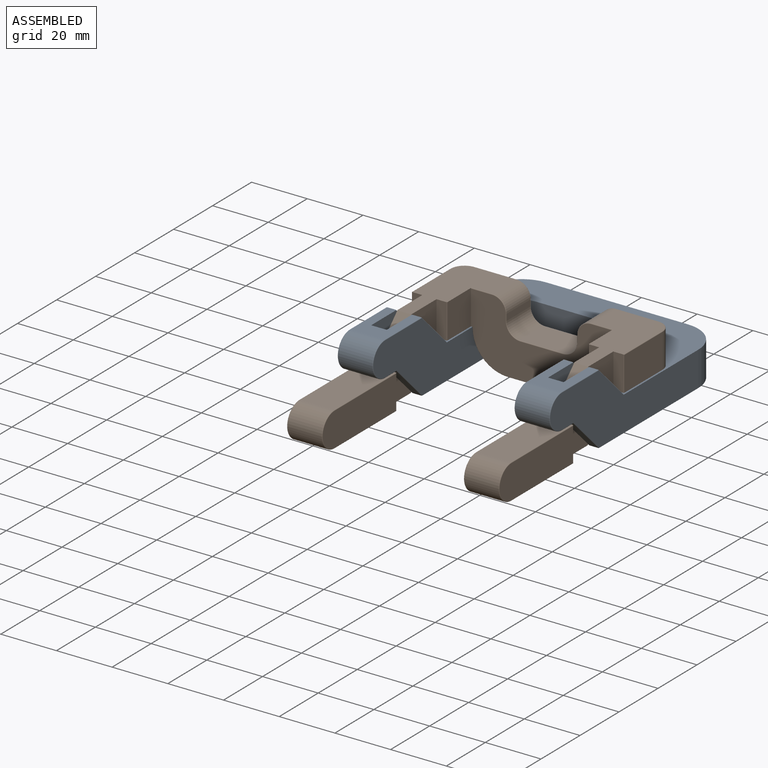
[diagram: assembled view]
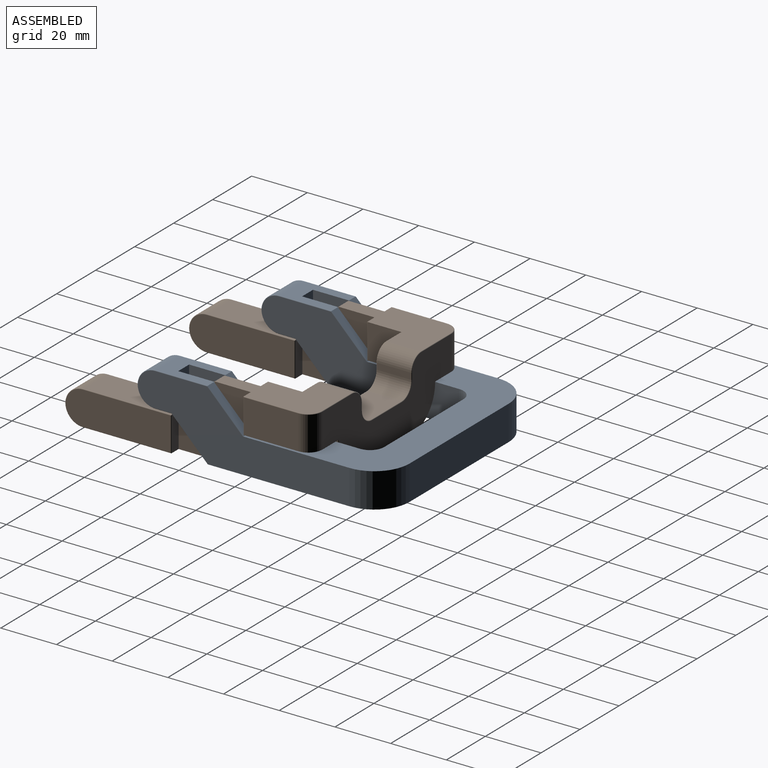
[diagram: assembled view, second angle]
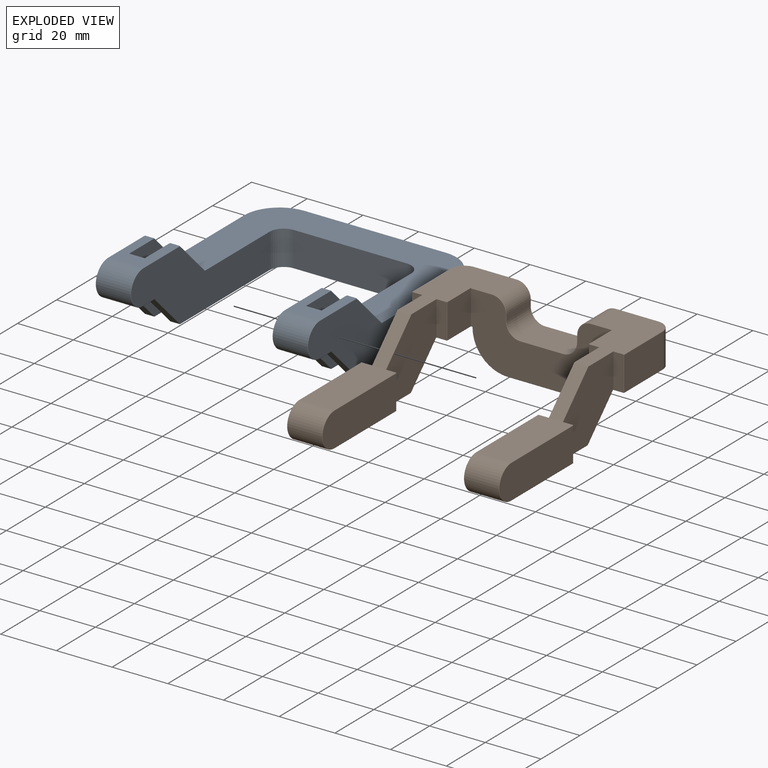
[diagram: exploded view]
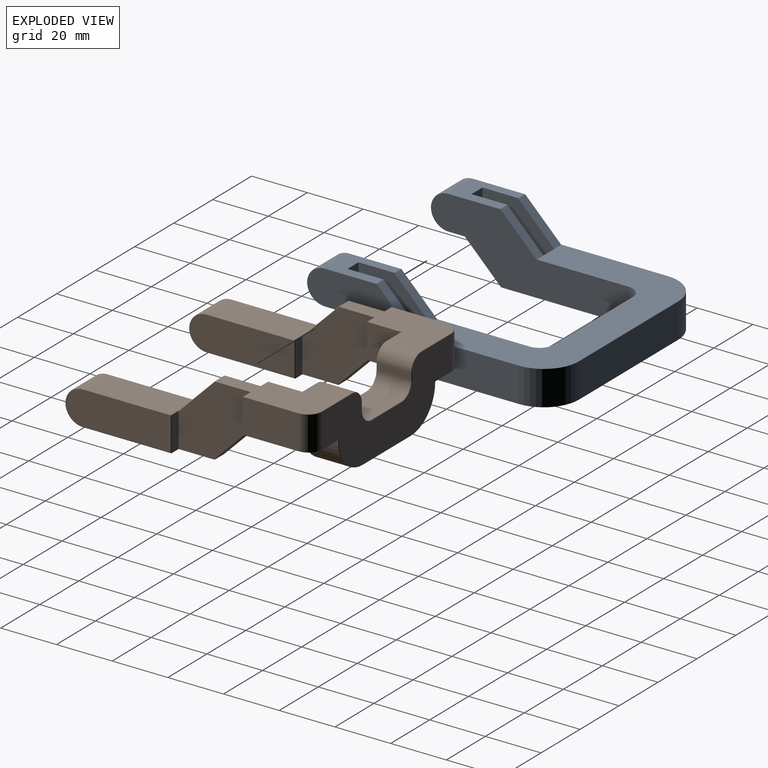
[diagram: exploded view, second angle]
ASSEMBLY  parts=2 mates=2
PART A: 68 faces, bbox 76.2x89.4x26.1 mm
  f0: plane 18.8x12.3mm, normal (0,0,1), area 158.8mm2, adj f3,f9,f24,f25,f26,f29,f53,f59
  f1: plane 12.95x12.95mm, normal (0,-0.71,-0.71), area 57.8mm2, adj f2,f10,f54,f60
  f2: plane 76.2x63.75mm, normal (0,0,-1), area 2061.5mm2, adj f1,f4,f7,f11,f12,f15,f16,f17
  f3: plane 12.95x12.95mm, normal (0,0.71,0.71), area 57.8mm2, adj f0,f8,f58,f62
  f4: plane 12.95x12.95mm, normal (0,-0.71,-0.71), area 57.8mm2, adj f2,f14,f42,f64
  f5: plane 12.95x12.95mm, normal (0,0.71,0.71), area 57.8mm2, adj f6,f8,f46,f66
  f6: plane 18.8x12.3mm, normal (0,0,1), area 158.8mm2, adj f5,f13,f20,f21,f22,f31,f41,f47
  f7: plane 12.95x12.95mm, normal (0,-0.71,-0.71), area 57.8mm2, adj f2,f10,f48,f61
  f8: plane 76.2x51.08mm, normal (0,0,1), area 1877.4mm2, adj f3,f5,f9,f12,f13,f15,f16,f17
  f9: plane 12.95x12.95mm, normal (0,0.71,0.71), area 57.8mm2, adj f0,f8,f52,f63
  f10: plane 12.3x5.84mm, normal (0,0,-1), area 71.9mm2, adj f1,f7,f24,f28,f49,f55
  f11: plane 12.95x12.95mm, normal (0,-0.71,-0.71), area 57.8mm2, adj f2,f14,f36,f65
  f12: plane 50.8x12.45mm, normal (0,1,0), area 632.3mm2, adj f2,f8,f34,f35
  f13: plane 12.95x12.95mm, normal (0,0.71,0.71), area 57.8mm2, adj f6,f8,f40,f67
  f14: plane 12.3x5.84mm, normal (0,0,-1), area 71.9mm2, adj f4,f11,f20,f30,f37,f43
  f15: plane 76x25.2mm, normal (1,0,0), area 1082.8mm2, adj f2,f8,f35,f36,f37,f38,f39,f40
  f16: plane 76x25.2mm, normal (-1,0,0), area 1082.8mm2, adj f2,f8,f34,f54,f55,f56,f57,f58
  f17: plane 70.92x25.2mm, normal (1,0,0), area 1019.5mm2, adj f2,f8,f32,f48,f49,f50,f51,f52
  f18: plane 70.92x25.2mm, normal (-1,0,0), area 1019.5mm2, adj f2,f8,f33,f42,f43,f44,f45,f46
  f19: plane 40.64x12.45mm, normal (0,-1,0), area 505.8mm2, adj f2,f8,f32,f33
  f20: plane 12.45x5.99mm, normal (0,1,0), area 69.6mm2, adj f6,f14,f21,f22,f64,f65
  f21: plane 25.91x25.4mm, normal (1,0,0), area 482.8mm2, adj f2,f6,f20,f23,f64,f66
  f22: plane 25.91x25.4mm, normal (-1,0,0), area 482.8mm2, adj f2,f6,f20,f23,f65,f67
  f23: plane 12.45x5.99mm, normal (0,-1,0), area 69.6mm2, adj f2,f8,f21,f22,f66,f67
  f24: plane 12.45x5.99mm, normal (0,1,0), area 69.6mm2, adj f0,f10,f25,f26,f60,f61
  f25: plane 25.91x25.4mm, normal (1,0,0), area 482.8mm2, adj f0,f2,f24,f27,f60,f62
  f26: plane 25.91x25.4mm, normal (-1,0,0), area 482.8mm2, adj f0,f2,f24,f27,f61,f63
  f27: plane 12.45x5.99mm, normal (0,-1,0), area 69.6mm2, adj f2,f8,f25,f26,f62,f63
  f28: cylinder r=6.35mm len=12.3mm, axis (-1,0,0), area 121.1mm2, adj f10,f29,f50,f56
  f29: cylinder r=6.35mm len=12.3mm, axis (1,0,0), area 121.1mm2, adj f0,f28,f51,f57
  f30: cylinder r=6.35mm len=12.3mm, axis (-1,0,0), area 121.1mm2, adj f14,f31,f38,f44
  f31: cylinder r=6.35mm len=12.3mm, axis (1,0,0), area 121.1mm2, adj f6,f30,f39,f45
  f32: cylinder r=5.08mm len=12.45mm, axis (0,0,-1), area 99.3mm2, adj f2,f8,f17,f19
  f33: cylinder r=5.08mm len=12.45mm, axis (0,0,1), area 99.3mm2, adj f2,f8,f18,f19
  f34: cylinder r=12.7mm len=12.7mm, axis (0,0,1), area 248.3mm2, adj f2,f8,f12,f16
  f35: cylinder r=12.7mm len=12.7mm, axis (0,0,-1), area 248.3mm2, adj f2,f8,f12,f15
  f36: cylinder r=0.2mm len=13.3mm, axis (0,-0.71,0.71), area 5.8mm2, adj f2,f11,f15,f37
  f37: cylinder r=0.2mm len=5.93mm, axis (0,-1,0), area 1.8mm2, adj f14,f15,f36,f38
  f38: torus R=6.15mm, axis (1,0,0), area 3.1mm2, adj f15,f30,f37,f39
  f39: torus R=6.15mm, axis (1,0,0), area 3.1mm2, adj f15,f31,f38,f41
  f40: cylinder r=0.2mm len=13.1mm, axis (0,0.71,-0.71), area 5.7mm2, adj f8,f13,f15,f41
  f41: cylinder r=0.2mm len=18.8mm, axis (0,1,0), area 5.9mm2, adj f6,f15,f39,f40
  f42: cylinder r=0.2mm len=13.3mm, axis (0,0.71,-0.71), area 5.8mm2, adj f2,f4,f18,f43
  f43: cylinder r=0.2mm len=5.93mm, axis (0,1,0), area 1.8mm2, adj f14,f18,f42,f44
  f44: torus R=6.15mm, axis (1,0,0), area 3.1mm2, adj f18,f30,f43,f45
  f45: torus R=6.15mm, axis (1,0,0), area 3.1mm2, adj f18,f31,f44,f47
  f46: cylinder r=0.2mm len=13.1mm, axis (0,-0.71,0.71), area 5.7mm2, adj f5,f8,f18,f47
  f47: cylinder r=0.2mm len=18.8mm, axis (0,-1,0), area 5.9mm2, adj f6,f18,f45,f46
  f48: cylinder r=0.2mm len=13.3mm, axis (0,-0.71,0.71), area 5.8mm2, adj f2,f7,f17,f49
  f49: cylinder r=0.2mm len=5.93mm, axis (0,-1,0), area 1.8mm2, adj f10,f17,f48,f50
  f50: torus R=6.15mm, axis (1,0,0), area 3.1mm2, adj f17,f28,f49,f51
  f51: torus R=6.15mm, axis (1,0,0), area 3.1mm2, adj f17,f29,f50,f53
  f52: cylinder r=0.2mm len=13.1mm, axis (0,0.71,-0.71), area 5.7mm2, adj f8,f9,f17,f53
  f53: cylinder r=0.2mm len=18.8mm, axis (0,1,0), area 5.9mm2, adj f0,f17,f51,f52
  f54: cylinder r=0.2mm len=13.3mm, axis (0,0.71,-0.71), area 5.8mm2, adj f1,f2,f16,f55
  f55: cylinder r=0.2mm len=5.93mm, axis (0,1,0), area 1.8mm2, adj f10,f16,f54,f56
  f56: torus R=6.15mm, axis (1,0,0), area 3.1mm2, adj f16,f28,f55,f57
  f57: torus R=6.15mm, axis (1,0,0), area 3.1mm2, adj f16,f29,f56,f59
  f58: cylinder r=0.2mm len=13.1mm, axis (0,-0.71,0.71), area 5.7mm2, adj f3,f8,f16,f59
  f59: cylinder r=0.2mm len=18.8mm, axis (0,-1,0), area 5.9mm2, adj f0,f16,f57,f58
  f60: cylinder r=0.2mm len=13.38mm, axis (0,-0.71,0.71), area 5.8mm2, adj f1,f2,f24,f25
  f61: cylinder r=0.2mm len=13.38mm, axis (0,0.71,-0.71), area 5.8mm2, adj f2,f7,f24,f26
  f62: cylinder r=0.2mm len=13.38mm, axis (0,0.71,-0.71), area 5.8mm2, adj f0,f3,f25,f27
  f63: cylinder r=0.2mm len=13.38mm, axis (0,-0.71,0.71), area 5.8mm2, adj f0,f9,f26,f27
  f64: cylinder r=0.2mm len=13.38mm, axis (0,-0.71,0.71), area 5.8mm2, adj f2,f4,f20,f21
  f65: cylinder r=0.2mm len=13.38mm, axis (0,0.71,-0.71), area 5.8mm2, adj f2,f11,f20,f22
  f66: cylinder r=0.2mm len=13.38mm, axis (0,0.71,-0.71), area 5.8mm2, adj f5,f6,f21,f23
  f67: cylinder r=0.2mm len=13.38mm, axis (0,-0.71,0.71), area 5.8mm2, adj f6,f13,f22,f23
PART B: 116 faces, bbox 77x89.8x26.9 mm
  f0: plane 31.75x12.3mm, normal (0,0,1), area 390.5mm2, adj f3,f28,f39,f41,f100,f105
  f1: plane 44.7x12.3mm, normal (0,0,-1), area 456.3mm2, adj f9,f31,f32,f34,f35,f42,f86,f91
  f2: plane 37.65x20.12mm, normal (0,0,1), area 463mm2, adj f3,f24,f29,f30,f37,f38,f46,f52
  f3: plane 12.95x12.95mm, normal (0,-0.71,0.71), area 85.7mm2, adj f0,f2,f106,f107
  f4: plane 44.7x12.3mm, normal (0,0,-1), area 456.3mm2, adj f5,f28,f30,f37,f39,f40,f96,f101
  f5: plane 12.95x12.95mm, normal (0,0.71,-0.71), area 85.7mm2, adj f4,f12,f108,f109
  f6: plane 19.61x12.25mm, normal (1,0,0), area 240.2mm2, adj f19,f49,f61,f62
  f7: plane 19.61x12.25mm, normal (-1,0,0), area 240.2mm2, adj f12,f48,f73,f75
  f8: plane 12.95x12.95mm, normal (0,-0.71,0.71), area 85.7mm2, adj f18,f20,f110,f111
  f9: plane 12.95x12.95mm, normal (0,0.71,-0.71), area 85.7mm2, adj f1,f19,f112,f113
  f10: plane 37.7x12.05mm, normal (-1,0,0), area 437.9mm2, adj f91,f92,f93,f94,f95
  f11: plane 37.7x12.05mm, normal (1,0,0), area 437.9mm2, adj f96,f97,f98,f99,f100
  f12: plane 24.89x13.41mm, normal (0,0,-1), area 317mm2, adj f5,f7,f13,f15,f21,f24,f29,f38
  f13: plane 50.8x25mm, normal (0,-1,0), area 865.5mm2, adj f12,f19,f23,f24,f52,f53,f54,f55
  f14: plane 24.38x12.3mm, normal (0,0,-1), area 299.9mm2, adj f50,f51,f78,f83
  f15: plane 66.04x25mm, normal (0,1,0), area 1052.1mm2, adj f12,f19,f48,f49,f64,f65,f66,f67
  f16: plane 37.7x12.05mm, normal (1,0,0), area 437.9mm2, adj f86,f87,f88,f89,f90
  f17: plane 37.7x12.05mm, normal (-1,0,0), area 437.9mm2, adj f101,f102,f103,f104,f105
  f18: plane 31.75x12.3mm, normal (0,0,1), area 390.5mm2, adj f8,f32,f34,f43,f90,f95
  f19: plane 24.89x13.41mm, normal (0,0,-1), area 317mm2, adj f6,f9,f13,f15,f22,f23,f33,f36
  f20: plane 37.65x20.12mm, normal (0,0,1), area 463mm2, adj f8,f23,f31,f33,f35,f36,f44,f60
  f21: plane 12.3x0.25mm, normal (-1,0,0), area 3.1mm2, adj f12,f50,f80,f85
  f22: plane 12.3x0.25mm, normal (1,0,0), area 3.1mm2, adj f19,f51,f76,f81
  f23: plane 12.45x12.19mm, normal (-1,0,0), area 149.3mm2, adj f13,f19,f20,f60,f114
  f24: plane 12.45x12.19mm, normal (1,0,0), area 149.3mm2, adj f2,f12,f13,f52,f115
  f25: plane 12.3x2.29mm, normal (-1,0,0), area 28.1mm2, adj f44,f45,f58,f66
  f26: plane 15.24x12.3mm, normal (0,0,1), area 187.5mm2, adj f45,f47,f56,f68
  f27: plane 12.3x2.29mm, normal (1,0,0), area 28.1mm2, adj f46,f47,f54,f70
  f28: plane 12.45x3.81mm, normal (0,1,0), area 44.9mm2, adj f0,f4,f30,f98,f107
  f29: plane 12.45x3.81mm, normal (0,-1,0), area 44.9mm2, adj f2,f12,f30,f109,f115
  f30: plane 25.91x25.4mm, normal (1,0,0), area 482.8mm2, adj f2,f4,f28,f29,f107,f109
  f31: plane 25.91x25.4mm, normal (-1,0,0), area 482.8mm2, adj f1,f20,f32,f33,f111,f113
  f32: plane 12.45x3.81mm, normal (0,1,0), area 44.9mm2, adj f1,f18,f31,f93,f111
  f33: plane 12.45x3.81mm, normal (0,-1,0), area 44.9mm2, adj f19,f20,f31,f113,f114
  f34: plane 12.45x3.81mm, normal (0,1,0), area 44.9mm2, adj f1,f18,f35,f88,f110
  f35: plane 25.91x25.4mm, normal (1,0,0), area 482.8mm2, adj f1,f20,f34,f36,f110,f112
  f36: plane 12.45x3.81mm, normal (0,-1,0), area 44.9mm2, adj f19,f20,f35,f61,f112
  f37: plane 25.91x25.4mm, normal (-1,0,0), area 482.8mm2, adj f2,f4,f38,f39,f106,f108
  f38: plane 12.45x3.81mm, normal (0,-1,0), area 44.9mm2, adj f2,f12,f37,f73,f108
  f39: plane 12.45x3.81mm, normal (0,1,0), area 44.9mm2, adj f0,f4,f37,f103,f106
  f40: cylinder r=6.35mm len=12.3mm, axis (1,0,0), area 121.1mm2, adj f4,f41,f97,f102
  f41: cylinder r=6.35mm len=12.3mm, axis (-1,0,0), area 121.1mm2, adj f0,f40,f99,f104
  f42: cylinder r=6.35mm len=12.3mm, axis (1,0,0), area 121.1mm2, adj f1,f43,f87,f92
  f43: cylinder r=6.35mm len=12.3mm, axis (-1,0,0), area 121.1mm2, adj f18,f42,f89,f94
  f44: cylinder r=5.08mm len=12.3mm, axis (0,-1,0), area 98.1mm2, adj f20,f25,f59,f65
  f45: cylinder r=5.08mm len=12.3mm, axis (0,-1,0), area 98.1mm2, adj f25,f26,f57,f67
  f46: cylinder r=5.08mm len=12.3mm, axis (0,1,0), area 98.1mm2, adj f2,f27,f53,f71
  f47: cylinder r=5.08mm len=12.3mm, axis (0,1,0), area 98.1mm2, adj f26,f27,f55,f69
  f48: cylinder r=5.08mm len=12.25mm, axis (0,0,1), area 97.7mm2, adj f7,f12,f15,f74
  f49: cylinder r=5.08mm len=12.25mm, axis (0,0,-1), area 97.7mm2, adj f6,f15,f19,f63
  f50: cylinder r=12.7mm len=12.7mm, axis (0,1,0), area 245.4mm2, adj f14,f21,f79,f84
  f51: cylinder r=12.7mm len=12.7mm, axis (0,-1,0), area 245.4mm2, adj f14,f22,f77,f82
  f52: cylinder r=0.2mm len=7.62mm, axis (1,0,0), area 2.4mm2, adj f2,f13,f24,f53
  f53: torus R=4.88mm, axis (0,1,0), area 2.5mm2, adj f13,f46,f52,f54
  f54: cylinder r=0.2mm len=2.29mm, axis (0,0,-1), area 0.7mm2, adj f13,f27,f53,f55
  f55: torus R=5.28mm, axis (0,1,0), area 2.5mm2, adj f13,f47,f54,f56
  f56: cylinder r=0.2mm len=15.24mm, axis (1,0,0), area 4.8mm2, adj f13,f26,f55,f57
  f57: torus R=5.28mm, axis (0,1,0), area 2.5mm2, adj f13,f45,f56,f58
  f58: cylinder r=0.2mm len=2.29mm, axis (0,0,1), area 0.7mm2, adj f13,f25,f57,f59
  f59: torus R=4.88mm, axis (0,1,0), area 2.5mm2, adj f13,f44,f58,f60
  f60: cylinder r=0.2mm len=7.62mm, axis (1,0,0), area 2.4mm2, adj f13,f20,f23,f59
  f61: cylinder r=0.2mm len=12.45mm, axis (0,0,-1), area 3.9mm2, adj f6,f19,f36,f62
  f62: cylinder r=0.2mm len=19.81mm, axis (0,1,0), area 6.2mm2, adj f6,f20,f61,f63
  f63: torus R=4.88mm, axis (0,0,1), area 2.5mm2, adj f20,f49,f62,f64
  f64: cylinder r=0.2mm len=15.24mm, axis (-1,0,0), area 4.8mm2, adj f15,f20,f63,f65
  f65: torus R=4.88mm, axis (0,1,0), area 2.5mm2, adj f15,f44,f64,f66
  f66: cylinder r=0.2mm len=2.29mm, axis (0,0,1), area 0.7mm2, adj f15,f25,f65,f67
  f67: torus R=5.28mm, axis (0,1,0), area 2.5mm2, adj f15,f45,f66,f68
  f68: cylinder r=0.2mm len=15.24mm, axis (1,0,0), area 4.8mm2, adj f15,f26,f67,f69
  f69: torus R=5.28mm, axis (0,1,0), area 2.5mm2, adj f15,f47,f68,f70
  f70: cylinder r=0.2mm len=2.29mm, axis (0,0,-1), area 0.7mm2, adj f15,f27,f69,f71
  f71: torus R=4.88mm, axis (0,1,0), area 2.5mm2, adj f15,f46,f70,f72
  f72: cylinder r=0.2mm len=15.24mm, axis (-1,0,0), area 4.8mm2, adj f2,f15,f71,f74
  f73: cylinder r=0.2mm len=12.45mm, axis (0,0,-1), area 3.9mm2, adj f7,f12,f38,f75
  f74: torus R=4.88mm, axis (0,0,1), area 2.5mm2, adj f2,f48,f72,f75
  f75: cylinder r=0.2mm len=19.81mm, axis (0,-1,0), area 6.2mm2, adj f2,f7,f73,f74
  f76: cylinder r=0.2mm len=0.25mm, axis (0,0,-1), area 0.1mm2, adj f13,f19,f22,f77
  f77: torus R=12.5mm, axis (0,1,0), area 6.2mm2, adj f13,f51,f76,f78
  f78: cylinder r=0.2mm len=24.38mm, axis (1,0,0), area 7.7mm2, adj f13,f14,f77,f79
  f79: torus R=12.5mm, axis (0,1,0), area 6.2mm2, adj f13,f50,f78,f80
  f80: cylinder r=0.2mm len=0.25mm, axis (0,0,1), area 0.1mm2, adj f12,f13,f21,f79
  f81: cylinder r=0.2mm len=0.25mm, axis (0,0,-1), area 0.1mm2, adj f15,f19,f22,f82
  f82: torus R=12.5mm, axis (0,1,0), area 6.2mm2, adj f15,f51,f81,f83
  f83: cylinder r=0.2mm len=24.38mm, axis (-1,0,0), area 7.7mm2, adj f14,f15,f82,f84
  f84: torus R=12.5mm, axis (0,1,0), area 6.2mm2, adj f15,f50,f83,f85
  f85: cylinder r=0.2mm len=0.25mm, axis (0,0,1), area 0.1mm2, adj f12,f15,f21,f84
  f86: cylinder r=0.2mm len=31.75mm, axis (0,-1,0), area 10mm2, adj f1,f16,f87,f88
  f87: torus R=6.15mm, axis (1,0,0), area 3.1mm2, adj f16,f42,f86,f89
  f88: cylinder r=0.2mm len=12.45mm, axis (0,0,1), area 3.9mm2, adj f16,f34,f86,f90
  f89: torus R=6.15mm, axis (1,0,0), area 3.1mm2, adj f16,f43,f87,f90
  f90: cylinder r=0.2mm len=31.75mm, axis (0,1,0), area 10mm2, adj f16,f18,f88,f89
  f91: cylinder r=0.2mm len=31.75mm, axis (0,-1,0), area 10mm2, adj f1,f10,f92,f93
  f92: torus R=6.15mm, axis (1,0,0), area 3.1mm2, adj f10,f42,f91,f94
  f93: cylinder r=0.2mm len=12.45mm, axis (0,0,-1), area 3.9mm2, adj f10,f32,f91,f95
  f94: torus R=6.15mm, axis (1,0,0), area 3.1mm2, adj f10,f43,f92,f95
  f95: cylinder r=0.2mm len=31.75mm, axis (0,-1,0), area 10mm2, adj f10,f18,f93,f94
  f96: cylinder r=0.2mm len=31.75mm, axis (0,1,0), area 10mm2, adj f4,f11,f97,f98
  f97: torus R=6.15mm, axis (1,0,0), area 3.1mm2, adj f11,f40,f96,f99
  f98: cylinder r=0.2mm len=12.45mm, axis (0,0,1), area 3.9mm2, adj f11,f28,f96,f100
  f99: torus R=6.15mm, axis (1,0,0), area 3.1mm2, adj f11,f41,f97,f100
  f100: cylinder r=0.2mm len=31.75mm, axis (0,1,0), area 10mm2, adj f0,f11,f98,f99
  f101: cylinder r=0.2mm len=31.75mm, axis (0,1,0), area 10mm2, adj f4,f17,f102,f103
  f102: torus R=6.15mm, axis (1,0,0), area 3.1mm2, adj f17,f40,f101,f104
  f103: cylinder r=0.2mm len=12.45mm, axis (0,0,1), area 3.9mm2, adj f17,f39,f101,f105
  f104: torus R=6.15mm, axis (1,0,0), area 3.1mm2, adj f17,f41,f102,f105
  f105: cylinder r=0.2mm len=31.75mm, axis (0,-1,0), area 10mm2, adj f0,f17,f103,f104
  f106: cylinder r=0.2mm len=13.38mm, axis (0,-0.71,-0.71), area 5.8mm2, adj f2,f3,f37,f39
  f107: cylinder r=0.2mm len=13.38mm, axis (0,0.71,0.71), area 5.8mm2, adj f2,f3,f28,f30
  f108: cylinder r=0.2mm len=13.38mm, axis (0,0.71,0.71), area 5.8mm2, adj f4,f5,f37,f38
  f109: cylinder r=0.2mm len=13.38mm, axis (0,-0.71,-0.71), area 5.8mm2, adj f4,f5,f29,f30
  f110: cylinder r=0.2mm len=13.38mm, axis (0,0.71,0.71), area 5.8mm2, adj f8,f20,f34,f35
  f111: cylinder r=0.2mm len=13.38mm, axis (0,-0.71,-0.71), area 5.8mm2, adj f8,f20,f31,f32
  f112: cylinder r=0.2mm len=13.38mm, axis (0,-0.71,-0.71), area 5.8mm2, adj f1,f9,f35,f36
  f113: cylinder r=0.2mm len=13.38mm, axis (0,0.71,0.71), area 5.8mm2, adj f1,f9,f31,f33
  f114: cylinder r=0.2mm len=12.45mm, axis (0,0,1), area 3.9mm2, adj f19,f20,f23,f33
  f115: cylinder r=0.2mm len=12.45mm, axis (0,0,-1), area 3.9mm2, adj f2,f12,f24,f29
PLACE A t=(-4.12,-0.41,2.04)mm
PLACE B t=(-4.12,-26.37,2.04)mm
MATE planar B.f4 <-> A.f2  axis (0,0,-1) through (2.23,-39.02,-10.41)mm
MATE planar B.f17 <-> A.f16  axis (-1,0,0) through (-4.12,-44.77,-4.19)mm
